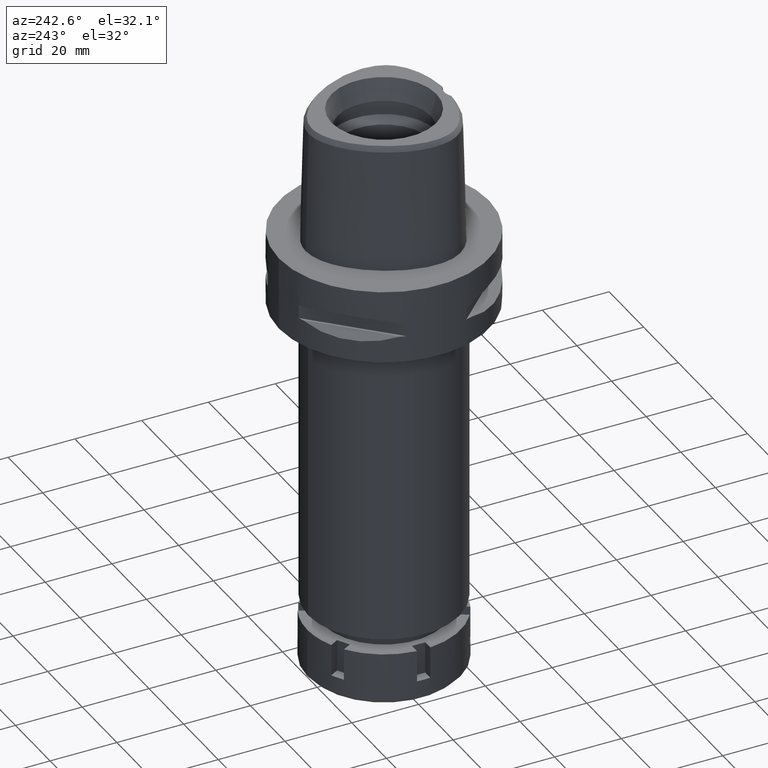
[diagram: clean part render]
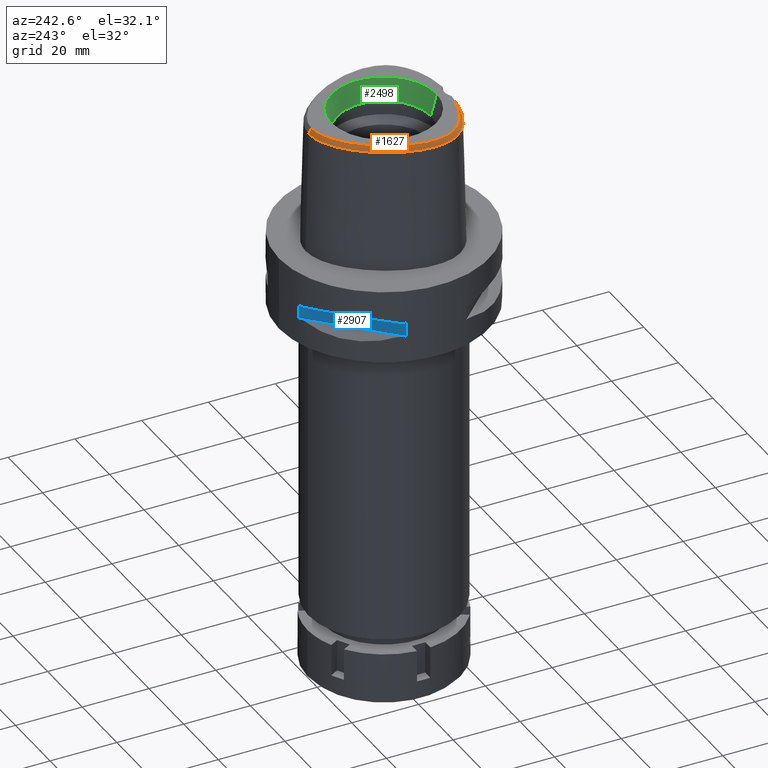
[diagram: same view with three faces highlighted in distinct colors, each labeled with its STEP entity id]
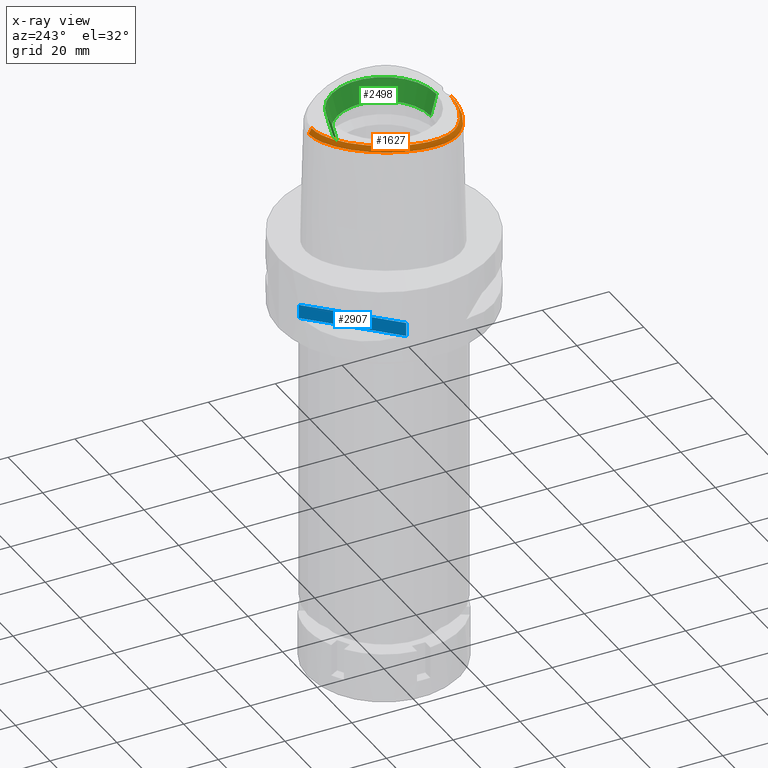
[diagram: x-ray of the same camera — body ghosted, the three highlighted faces saturated]
A machine part, auxiliary view with three faces highlighted in distinct colors.
The next image is the same camera in x-ray (body ghosted, the three faces saturated) — at least one of them is partly hidden behind the body in this view.
Their STEP definitions:

[orange] entity #1627 — the highlighted face is a freeform B-spline surface patch.
#8 = DIRECTION ( 'NONE',  ( -1.018379596390013160E-11, -0.5092834681090075977, 0.8605988316927122295 ) ) ;
#24 = CARTESIAN_POINT ( 'NONE',  ( -17.37402865678000197, -13.66774840220000087, 36.94975164540999657 ) ) ;
#36 = B_SPLINE_CURVE_WITH_KNOTS ( 'NONE', 3,
 ( #1539, #4153, #1560, #5024 ),
 .UNSPECIFIED., .F., .F.,
 ( 4, 4 ),
 ( 0.0000000000000000000, 1.000000000000000000 ),
 .UNSPECIFIED. ) ;
#57 = CARTESIAN_POINT ( 'NONE',  ( -20.98452206522999930, -5.318697863554000094, 36.94975234360999394 ) ) ;
#86 = CARTESIAN_POINT ( 'NONE',  ( -20.65395622624999916, -4.313782244179000358, 37.57207274833999833 ) ) ;
#112 = CARTESIAN_POINT ( 'NONE',  ( -20.72952017243000356, -8.833409917243999487, 36.32743067672999615 ) ) ;
#114 = CARTESIAN_POINT ( 'NONE',  ( -18.24302769442376260, 5.671232572958309071, 37.99999999999723599 ) ) ;
#139 = CARTESIAN_POINT ( 'NONE',  ( -17.91458320433000040, -13.09841364166999966, 36.94975173978999550 ) ) ;
#141 = CARTESIAN_POINT ( 'NONE',  ( -20.27898581531928812, -6.181921586189544904, 37.99999999999836575 ) ) ;
#174 = CARTESIAN_POINT ( 'NONE',  ( -9.211804993070998648, -18.59928574234999843, 36.32743498446999553 ) ) ;
#182 = CARTESIAN_POINT ( 'NONE',  ( -4.213576025512999479, 20.75904289437000116, 38.19439370827000602 ) ) ;
#199 = CARTESIAN_POINT ( 'NONE',  ( -18.31748213707626505, -11.58791794387753349, 38.00000000000095213 ) ) ;
#205 = CARTESIAN_POINT ( 'NONE',  ( -3.557266338293999741, 21.37673726703000199, 37.57207282367000545 ) ) ;
#219 = CARTESIAN_POINT ( 'NONE',  ( -2.290829698418999971, -19.06382892654000116, 37.57207295275000547 ) ) ;
#228 = CARTESIAN_POINT ( 'NONE',  ( -5.011143438427999364, 20.42942328251000106, 38.19439364593000619 ) ) ;
#245 = CARTESIAN_POINT ( 'NONE',  ( -2.340570516654999711, -19.79871283109999780, 36.32743167381000404 ) ) ;
#254 = CARTESIAN_POINT ( 'NONE',  ( -5.312562869988999736, 21.10190903368999926, 36.94975202314000029 ) ) ;
#266 = CARTESIAN_POINT ( 'NONE',  ( -7.572130361996999959, -17.89829309547999969, 38.19439335209999342 ) ) ;
#273 = ORIENTED_EDGE ( 'NONE', *, *, #2016, .F. ) ;
#276 = CARTESIAN_POINT ( 'NONE',  ( -8.949172463557999890, 18.94559266158000099, 36.94975136466000265 ) ) ;
#300 = CARTESIAN_POINT ( 'NONE',  ( -19.85712455859999892, 3.052675212453999976, 36.94975303935000710 ) ) ;
#331 = CARTESIAN_POINT ( 'NONE',  ( -14.17312765907000127, 14.38672719408999967, 36.32743017922000206 ) ) ;
#358 = CARTESIAN_POINT ( 'NONE',  ( -11.38376783060000008, 15.84653561575000147, 38.19439325166000287 ) ) ;
#369 = CARTESIAN_POINT ( 'NONE',  ( -17.27359245833693535, 9.972912913898799303, 36.52186244848001451 ) ) ;
#387 = CARTESIAN_POINT ( 'NONE',  ( -19.15610625101000153, 6.054267532784999517, 36.32743104253000155 ) ) ;
#424 = CARTESIAN_POINT ( 'NONE',  ( -15.76473606185999721, 11.60132340135000106, 36.94975234806000230 ) ) ;
#452 = CARTESIAN_POINT ( 'NONE',  ( -20.94671610875999690, -8.043101238202000403, 36.32743057089999894 ) ) ;
#480 = CARTESIAN_POINT ( 'NONE',  ( -19.18079239677999936, -9.822785492403999896, 38.19439368295000037 ) ) ;
#509 = CARTESIAN_POINT ( 'NONE',  ( -20.16473062245000136, -6.167997837421999918, 38.19439365046000034 ) ) ;
#541 = CARTESIAN_POINT ( 'NONE',  ( -21.37227940065000098, -3.233828534674999755, 36.32743066769000251 ) ) ;
#543 = CARTESIAN_POINT ( 'NONE',  ( -19.28591707036893155, -9.869682450886715586, 37.99999999999295852 ) ) ;
#567 = CARTESIAN_POINT ( 'NONE',  ( -17.36542747952999832, -12.60688624877999864, 38.19439369837999720 ) ) ;
#569 = CARTESIAN_POINT ( 'NONE',  ( -15.00295592774016562, -14.82617991125813717, 38.00000000000108002 ) ) ;
#596 = CARTESIAN_POINT ( 'NONE',  ( -13.45519642223999845, -16.07429141829999963, 37.57207268724999949 ) ) ;
#599 = CARTESIAN_POINT ( 'NONE',  ( -6.759433772717097000, 19.65454812512796678, 37.99999999999762679 ) ) ;
#624 = CARTESIAN_POINT ( 'NONE',  ( -2.315700107537000285, -19.43127087882000126, 36.94975231328000120 ) ) ;
#626 = CARTESIAN_POINT ( 'NONE',  ( -16.36032397153834239, -13.76458520344796987, 38.00000000000374456 ) ) ;
#632 = CARTESIAN_POINT ( 'NONE',  ( -2.131970190963000000, 22.11399066775999955, 36.94975169377999435 ) ) ;
#645 = CARTESIAN_POINT ( 'NONE',  ( -4.690709089790999542, -18.45329468470999856, 38.19439370132000278 ) ) ;
#647 = CARTESIAN_POINT ( 'NONE',  ( -15.71788912669354410, -14.29843101565890606, 37.99999999999920419 ) ) ;
#653 = CARTESIAN_POINT ( 'NONE',  ( -8.509559889584000558, 18.35420135534999986, 38.19439376781000561 ) ) ;
#668 = CARTESIAN_POINT ( 'NONE',  ( -12.47985753072000037, -16.56997625139999997, 37.57207265590999867 ) ) ;
#678 = CARTESIAN_POINT ( 'NONE',  ( -0.6426863416131000095, 21.55889627900999983, 38.19439373371999835 ) ) ;
#700 = CARTESIAN_POINT ( 'NONE',  ( -16.32784604559000030, -15.07863341842999994, 36.32743084837999703 ) ) ;
#708 = CARTESIAN_POINT ( 'NONE',  ( -5.161853154208000838, 20.76566615810000016, 37.57207283452999746 ) ) ;
#715 = CARTESIAN_POINT ( 'NONE',  ( -21.32871527670033274, -4.105831244394256174, 36.52186244848001451 ) ) ;
#731 = CARTESIAN_POINT ( 'NONE',  ( -4.607179140009999507, 21.79204029992000002, 36.32743067533999692 ) ) ;
#759 = CARTESIAN_POINT ( 'NONE',  ( -12.35543351932999911, 14.81451558953000003, 38.19439360119999805 ) ) ;
#770 = CARTESIAN_POINT ( 'NONE',  ( -4.467522189395897847, -19.48130287050651432, 36.52186244848001451 ) ) ;
#794 = CARTESIAN_POINT ( 'NONE',  ( -10.41187760619999914, 16.78146389111000047, 38.19439322828000627 ) ) ;
#804 = CARTESIAN_POINT ( 'NONE',  ( -7.300578999877464170, -19.07170748892091083, 36.52186244848001451 ) ) ;
#820 = CARTESIAN_POINT ( 'NONE',  ( -20.20902587704000197, 3.161765592010999715, 36.32743283009999402 ) ) ;
#849 = CARTESIAN_POINT ( 'NONE',  ( -11.90797765651999995, 16.36437076694000226, 36.94975415324000778 ) ) ;
#887 = CARTESIAN_POINT ( 'NONE',  ( -12.90437077150000000, 15.30604911294000203, 36.94975226480999453 ) ) ;
#914 = CARTESIAN_POINT ( 'NONE',  ( -20.63611868769000068, -3.266955341462999929, 37.57207269533999749 ) ) ;
#936 = CARTESIAN_POINT ( 'NONE',  ( -19.54635035941999988, -10.75783597715000006, 36.94975151845000028 ) ) ;
#966 = CARTESIAN_POINT ( 'NONE',  ( -19.87292738573999884, -10.92857976827999877, 36.32743040800000500 ) ) ;
#992 = CARTESIAN_POINT ( 'NONE',  ( -20.58858615948000192, -7.956332507096999684, 36.94975162073999542 ) ) ;
#1021 = CARTESIAN_POINT ( 'NONE',  ( -14.34263510584000123, -15.56107723215999883, 37.57207283337000092 ) ) ;
#1023 = CARTESIAN_POINT ( 'NONE',  ( -18.99520880203969142, -10.46968343925934519, 38.00000000000005684 ) ) ;
#1046 = CARTESIAN_POINT ( 'NONE',  ( -4.742844040051000576, -18.81800401889999819, 37.57207271261000159 ) ) ;
#1048 = CARTESIAN_POINT ( 'NONE',  ( -2.017025177696559979, 21.50280829367893531, 37.99999999999955946 ) ) ;
#1072 = CARTESIAN_POINT ( 'NONE',  ( -2.687398660049999943, -19.40495994145999958, 36.94975234641000128 ) ) ;
#1074 = CARTESIAN_POINT ( 'NONE',  ( -20.30498420086894740, -2.177378896258164609, 38.00000000000422773 ) ) ;
#1080 = CARTESIAN_POINT ( 'NONE',  ( -0.02530911322917999903, 21.57820892216999908, 38.19439366646000167 ) ) ;
#1093 = VERTEX_POINT ( 'NONE', #3914 ) ;
#1104 = CARTESIAN_POINT ( 'NONE',  ( -9.450989207503001310, 17.61689805632000017, 38.19439352276000221 ) ) ;
#1115 = CARTESIAN_POINT ( 'NONE',  ( -10.50052807809999855, -18.18034680743000209, 36.32743335620000380 ) ) ;
#1124 = CARTESIAN_POINT ( 'NONE',  ( -4.475978101844999557, 21.44770783140999981, 36.94975168631999907 ) ) ;
#1135 = CARTESIAN_POINT ( 'NONE',  ( -1.721531712733000315E-11, 22.56201468012000078, 36.52186680743999858 ) ) ;
#1153 = CARTESIAN_POINT ( 'NONE',  ( -0.6888667861230000078, 22.29447834694000008, 36.94975154878000012 ) ) ;
#1178 = CARTESIAN_POINT ( 'NONE',  ( -20.41062606094000031, -0.9717782803028000016, 37.57207283834999600 ) ) ;
#1188 = ORIENTED_EDGE ( 'NONE', *, *, #1272, .T. ) ;
#1206 = CARTESIAN_POINT ( 'NONE',  ( -19.88972124622000237, 1.583264928851999986, 37.57207382053999822 ) ) ;
#1217 = CARTESIAN_POINT ( 'NONE',  ( -10.15538788052682762, 18.47129535094536834, 36.52186244848001451 ) ) ;
#1242 = CARTESIAN_POINT ( 'NONE',  ( -19.03454434398999950, 4.342937120401999529, 37.57207254325999912 ) ) ;
#1252 = CARTESIAN_POINT ( 'NONE',  ( -20.09619618741428937, -10.23243843868634073, 36.52186244848001451 ) ) ;
#1268 = CARTESIAN_POINT ( 'NONE',  ( -14.25131006088999897, 12.47944445219000009, 38.19439361942000488 ) ) ;
#1272 = EDGE_CURVE ( 'NONE', #4436, #1823, #3289, .T. ) ;
#1297 = CARTESIAN_POINT ( 'NONE',  ( -18.13690550030000281, 5.626714486240000035, 38.19439366558999893 ) ) ;
#1331 = CARTESIAN_POINT ( 'NONE',  ( -16.28428935387000465, -13.67816994066000014, 38.19439372802000321 ) ) ;
#1353 = CARTESIAN_POINT ( 'NONE',  ( -19.67256925539999912, -8.509411298926998768, 38.19439370810999890 ) ) ;
#1376 = CARTESIAN_POINT ( 'NONE',  ( -20.13164263457999681, -9.446162163730001282, 36.94975199882000538 ) ) ;
#1404 = CARTESIAN_POINT ( 'NONE',  ( -21.29047021473999735, -2.080396045540999772, 36.32743025196999298 ) ) ;
#1406 = CARTESIAN_POINT ( 'NONE',  ( -20.40060226222793816, -4.311417605381723028, 38.00000000000602540 ) ) ;
#1409 = VECTOR ( 'NONE', #8, 1000.000000000000227 ) ;
#1434 = CARTESIAN_POINT ( 'NONE',  ( -20.26803833119999965, -3.283518744858000105, 38.19439370916000343 ) ) ;
#1437 = CARTESIAN_POINT ( 'NONE',  ( -13.40435640711434218, 13.76268382997122686, 37.99999999999840128 ) ) ;
#1455 = CARTESIAN_POINT ( 'NONE',  ( -10.37805318362999962, -17.83286449826999842, 36.94975336968999358 ) ) ;
#1457 = CARTESIAN_POINT ( 'NONE',  ( -5.058220461389013600, 20.53445508814172271, 38.00000000000147793 ) ) ;
#1480 = CARTESIAN_POINT ( 'NONE',  ( -11.55444757479999929, -17.38301386171000118, 36.94975153995000738 ) ) ;
#1482 = CARTESIAN_POINT ( 'NONE',  ( -2.841965291530629933, -18.76757795571939980, 37.99999999999952394 ) ) ;
#1494 = CARTESIAN_POINT ( 'NONE',  ( -7.075161704167999943, 20.19025093493999989, 36.94975170650999985 ) ) ;
#1511 = CARTESIAN_POINT ( 'NONE',  ( -10.25557828916999981, -17.48538218911000186, 37.57207338318999490 ) ) ;
#1520 = CARTESIAN_POINT ( 'NONE',  ( 0.4144293555313000033, 22.30309750438999927, 36.94975170000999753 ) ) ;
#1532 = CARTESIAN_POINT ( 'NONE',  ( -2.716295757535000188, -19.77211699873000228, 36.32743172656000041 ) ) ;
#1539 = CARTESIAN_POINT ( 'NONE',  ( -2.682279906006999948, -18.78035848609999903, 38.00000000000000000 ) ) ;
#1542 = CARTESIAN_POINT ( 'NONE',  ( -1.355175608029000056, 21.86242088216000212, 37.57207255058999351 ) ) ;
#1554 = CARTESIAN_POINT ( 'NONE',  ( -15.64699712502999951, -14.20775229996000100, 38.19439368815999813 ) ) ;
#1560 = CARTESIAN_POINT ( 'NONE',  ( -3.339321438880127335, -19.25325016375550646, 37.10705438587216065 ) ) ;
#1563 = CARTESIAN_POINT ( 'NONE',  ( -3.668153019970000095, 21.72814616367000085, 36.94975199647999631 ) ) ;
#1587 = CARTESIAN_POINT ( 'NONE',  ( -0.2181979014508526049, 21.68728795389186814, 37.99999999999960920 ) ) ;
#1593 = CARTESIAN_POINT ( 'NONE',  ( -12.17008256947999989, 16.62328834254000043, 36.32743460404000047 ) ) ;
#1619 = CARTESIAN_POINT ( 'NONE',  ( -20.55712105734999895, -2.152565808330999531, 37.57207258897999225 ) ) ;
#1627 = ADVANCED_FACE ( 'NONE', ( #1881 ), #1705, .F. ) ;
#1647 = CARTESIAN_POINT ( 'NONE',  ( -11.15855850121999993, 17.59641042715999859, 36.32743480527999935 ) ) ;
#1681 = CARTESIAN_POINT ( 'NONE',  ( -17.43446542773000019, 8.811552884746999936, 36.94975195221000064 ) ) ;
#1692 = CARTESIAN_POINT ( 'NONE',  ( -7.108589416785774162, 20.52412325828677453, 36.52186244848001451 ) ) ;
#1705 = B_SPLINE_SURFACE_WITH_KNOTS ( 'NONE', 3, 3, ( 
 ( #3178, #4933, #3208, #2382 ),
 ( #1936, #4905, #1520, #4569 ),
 ( #1080, #2783, #3229, #1960 ),
 ( #678, #5346, #1153, #2835 ),
 ( #5004, #1542, #4493, #4114 ),
 ( #2760, #2354, #632, #2330 ),
 ( #4061, #3668, #2858, #2406 ),
 ( #4593, #205, #1563, #2427 ),
 ( #182, #1905, #1124, #731 ),
 ( #228, #708, #254, #3709 ),
 ( #3608, #3632, #3689, #5378 ),
 ( #4134, #4515, #1494, #5320 ),
 ( #1981, #3251, #5400, #4974 ),
 ( #653, #4088, #276, #4955 ),
 ( #1104, #2805, #4540, #4703 ),
 ( #794, #5027, #4617, #1647 ),
 ( #358, #3428, #849, #1593 ),
 ( #759, #4810, #887, #3858 ),
 ( #2457, #5121, #1709, #331 ),
 ( #1268, #2523, #2135, #4157 ),
 ( #2968, #4226, #424, #3367 ),
 ( #3000, #5053, #3336, #4648 ),
 ( #2494, #2550, #1681, #5147 ),
 ( #3307, #3766, #4285, #2879 ),
 ( #1297, #3825, #2069, #387 ),
 ( #4734, #1242, #2942, #3794 ),
 ( #5091, #4677, #300, #820 ),
 ( #3400, #1206, #2009, #4252 ),
 ( #3740, #5511, #2099, #4197 ),
 ( #5458, #1178, #2041, #5483 ),
 ( #2909, #1619, #5544, #1404 ),
 ( #1434, #914, #3488, #541 ),
 ( #2243, #86, #4818, #1815 ),
 ( #1846, #3119, #57, #2610 ),
 ( #509, #2693, #3946, #3970 ),
 ( #5206, #4403, #2269, #2184 ),
 ( #3911, #3514, #992, #452 ),
 ( #1353, #1768, #1793, #112 ),
 ( #3086, #3061, #1376, #2582 ),
 ( #480, #3539, #4794, #4430 ),
 ( #2217, #3574, #936, #966 ),
 ( #5180, #1735, #5230, #3995 ),
 ( #2633, #4371, #3883, #4317 ),
 ( #2666, #3146, #4342, #5255 ),
 ( #567, #4849, #139, #5289 ),
 ( #4874, #2159, #24, #3456 ),
 ( #1331, #3037, #4768, #2345 ),
 ( #1554, #1896, #2797, #700 ),
 ( #3271, #2323, #1925, #4966 ),
 ( #5337, #1021, #2302, #4531 ),
 ( #2718, #596, #2397, #4032 ),
 ( #3655, #668, #5311, #5369 ),
 ( #3243, #4457, #1480, #3198 ),
 ( #4895, #1511, #1455, #1115 ),
 ( #3221, #4126, #3169, #174 ),
 ( #266, #3679, #1873, #4560 ),
 ( #2774, #4106, #4506, #3600 ),
 ( #645, #1046, #2749, #2370 ),
 ( #1972, #4485, #5415, #3623 ),
 ( #4923, #4078, #1072, #1532 ),
 ( #2824, #219, #624, #245 ),
 ( #4053, #4945, #1951, #5391 ) ),
 .UNSPECIFIED., .F., .F., .F.,
 ( 4, 1, 1, 1, 1, 1, 1, 1, 1, 1, 1, 1, 1, 1, 1, 1, 1, 1, 1, 1, 1, 1, 1, 1, 1, 1, 1, 1, 1, 1, 1, 1, 1, 1, 1, 1, 1, 1, 1, 1, 1, 1, 1, 1, 1, 1, 1, 1, 1, 1, 1, 1, 1, 1, 1, 1, 1, 1, 1, 4 ),
 ( 4, 4 ),
 ( -0.01585043674195000044, 0.0000000000000000000, 0.01776034072165999858, 0.03552068144391999638, 0.05328102216616999870, 0.07104136288842999303, 0.08880170361069000817, 0.1065620443330000111, 0.1243223850551999909, 0.1420827257775000019, 0.1598430664997000095, 0.1776034072219000171, 0.1953637479442000002, 0.2131240886664000078, 0.2308844293887999943, 0.2486447701109999742, 0.2664051108332999851, 0.2841654515554999927, 0.3019257922778000314, 0.3196861329999999835, 0.3374464737223000221, 0.3552068144444999742, 0.3729671551668000129, 0.3907274958890999961, 0.4084878366113000037, 0.4262481773335999868, 0.4440085180557999944, 0.4617688587780999776, 0.4795291995003000407, 0.4972895402225999684, 0.5150498809447999760, 0.5328102216671000146, 0.5505705623893999423, 0.5683309031115999499, 0.5860912438338999886, 0.6038515845561001072, 0.6216119252783999238, 0.6393722660005999314, 0.6571326067228999701, 0.6748929474452000088, 0.6926532881674000164, 0.7104136288896999440, 0.7281739696118999516, 0.7459343103341999903, 0.7636946510563999979, 0.7814549917787000366, 0.7992153325008999332, 0.8169756732231999719, 0.8347360139455000105, 0.8524963546678000492, 0.8702566953900000568, 0.8880170361122000644, 0.9057773768344999921, 0.9235377175566999997, 0.9412980582790000383, 0.9590583990012000459, 0.9768187397236000047, 0.9945790804457999013, 1.000000000000000000, 1.006922200500000031 ),
 ( -0.1072233627436000036, 1.107245931847000042 ),
 .UNSPECIFIED. ) ;
#1709 = CARTESIAN_POINT ( 'NONE',  ( -13.88708719683999959, 14.15453634164999919, 36.94975137478999727 ) ) ;
#1735 = CARTESIAN_POINT ( 'NONE',  ( -18.89277429431000144, -11.16699270129999988, 37.57207275552999448 ) ) ;
#1768 = CARTESIAN_POINT ( 'NONE',  ( -20.02488622773999793, -8.617410838366000192, 37.57207269765000035 ) ) ;
#1793 = CARTESIAN_POINT ( 'NONE',  ( -20.37720320009000119, -8.725410377804999840, 36.94975168718999470 ) ) ;
#1815 = CARTESIAN_POINT ( 'NONE',  ( -21.39084538488999954, -4.320659881561999427, 36.32743087485000189 ) ) ;
#1818 = CARTESIAN_POINT ( 'NONE',  ( -2.735698246183067894, 21.34559102902754901, 38.00000000000426326 ) ) ;
#1823 = VERTEX_POINT ( 'NONE', #3326 ) ;
#1846 = CARTESIAN_POINT ( 'NONE',  ( -20.24912963758000117, -5.271024961993998836, 38.19439358660999773 ) ) ;
#1848 = CARTESIAN_POINT ( 'NONE',  ( -14.21001600787293917, -15.34519100086013665, 37.99999999999636913 ) ) ;
#1873 = CARTESIAN_POINT ( 'NONE',  ( -7.746540490333000406, -18.61420217559999912, 36.94975361064000907 ) ) ;
#1875 = CARTESIAN_POINT ( 'NONE',  ( -8.578220530113378928, 18.44656747109311468, 38.00000000000137135 ) ) ;
#1881 = FACE_OUTER_BOUND ( 'NONE', #5518, .T. ) ;
#1896 = CARTESIAN_POINT ( 'NONE',  ( -15.87394676520999859, -14.49804600612000094, 37.57207274155999954 ) ) ;
#1898 = CARTESIAN_POINT ( 'NONE',  ( -16.88647904405179645, 8.517821442302880186, 38.00000000000510880 ) ) ;
#1905 = CARTESIAN_POINT ( 'NONE',  ( -4.344777063678999518, 21.10337536288999871, 37.57207269729000387 ) ) ;
#1925 = CARTESIAN_POINT ( 'NONE',  ( -15.35747111360999995, -15.33706831046000119, 36.94975232558000044 ) ) ;
#1927 = CARTESIAN_POINT ( 'NONE',  ( -11.31790883121437830, -16.80796958613875702, 37.99999999999964473 ) ) ;
#1936 = CARTESIAN_POINT ( 'NONE',  ( 0.3870621643855000071, 21.56693198410000178, 38.19439370573999781 ) ) ;
#1951 = CARTESIAN_POINT ( 'NONE',  ( -2.106773196320999908, -19.44412792049999794, 36.94975227901999659 ) ) ;
#1960 = CARTESIAN_POINT ( 'NONE',  ( -0.02771281005017000101, 22.68368538782999977, 36.32743103509999827 ) ) ;
#1972 = CARTESIAN_POINT ( 'NONE',  ( -3.510798466744000201, -18.59369493152000175, 38.19439359942000323 ) ) ;
#1981 = CARTESIAN_POINT ( 'NONE',  ( -7.591529263400000005, 18.99866231365000147, 38.19439370012000268 ) ) ;
#1987 = CARTESIAN_POINT ( 'NONE',  ( -21.14970188363735915, -6.717195958887573148, 36.52186244848001451 ) ) ;
#2000 = CARTESIAN_POINT ( 'NONE',  ( -0.6498990081534357088, 21.67378274708484298, 37.99999999999364775 ) ) ;
#2009 = CARTESIAN_POINT ( 'NONE',  ( -20.24657056124999954, 1.674900601045000048, 36.94975444307999624 ) ) ;
#2016 = EDGE_CURVE ( 'NONE', #1093, #2106, #3559, .T. ) ;
#2022 = CARTESIAN_POINT ( 'NONE',  ( -4.757642277158504740, 21.67478330407244869, 36.52186244848001451 ) ) ;
#2041 = CARTESIAN_POINT ( 'NONE',  ( -20.77491494391999893, -0.9166325890628000961, 36.94975203251000551 ) ) ;
#2069 = CARTESIAN_POINT ( 'NONE',  ( -18.81637266743999959, 5.911749850602999956, 36.94975191687999683 ) ) ;
#2099 = CARTESIAN_POINT ( 'NONE',  ( -20.55111691934000007, 0.3485536549239000581, 36.94975395772000581 ) ) ;
#2106 = VERTEX_POINT ( 'NONE', #1135 ) ;
#2135 = CARTESIAN_POINT ( 'NONE',  ( -14.84492760070999928, 12.91594924147999990, 36.94975216634999526 ) ) ;
#2159 = CARTESIAN_POINT ( 'NONE',  ( -17.11470218998999826, -13.40595189233000006, 37.57207268063000072 ) ) ;
#2184 = CARTESIAN_POINT ( 'NONE',  ( -21.12543307391000269, -7.200518689386000482, 36.32743051442000137 ) ) ;
#2217 = CARTESIAN_POINT ( 'NONE',  ( -18.89319630678000195, -10.41634839490999909, 38.19439373934000059 ) ) ;
#2243 = CARTESIAN_POINT ( 'NONE',  ( -20.28551164693000075, -4.310343425487999980, 38.19439368508999877 ) ) ;
#2261 = EDGE_CURVE ( 'NONE', #2106, #1823, #4751, .T. ) ;
#2269 = CARTESIAN_POINT ( 'NONE',  ( -20.76283416374000268, -7.134925224068000560, 36.94975158527000048 ) ) ;
#2271 = CARTESIAN_POINT ( 'NONE',  ( -17.91005512243356534, -12.13778127739561086, 38.00000000000031264 ) ) ;
#2302 = CARTESIAN_POINT ( 'NONE',  ( -14.53549882496999857, -15.87503368428000172, 36.94975202028999917 ) ) ;
#2304 = CARTESIAN_POINT ( 'NONE',  ( -4.254559144977319463, 20.86660163696885206, 37.99999999999889866 ) ) ;
#2323 = CARTESIAN_POINT ( 'NONE',  ( -15.14740436462999895, -15.03434315398999921, 37.57207295775999967 ) ) ;
#2325 = CARTESIAN_POINT ( 'NONE',  ( -20.16012968311339293, -1.009698174524692016, 38.00000000000511591 ) ) ;
#2330 = CARTESIAN_POINT ( 'NONE',  ( -2.200080461581999991, 22.47614467265000116, 36.32743068723000590 ) ) ;
#2345 = CARTESIAN_POINT ( 'NONE',  ( -17.01452811352000083, -14.50810472887999936, 36.32743050545000330 ) ) ;
#2347 = CARTESIAN_POINT ( 'NONE',  ( -7.599370508970297422, -18.01010694911363075, 38.00000000000717648 ) ) ;
#2354 = CARTESIAN_POINT ( 'NONE',  ( -2.063859920342999921, 21.75183666287000150, 37.57207270032999702 ) ) ;
#2370 = CARTESIAN_POINT ( 'NONE',  ( -4.847113940572000068, -19.54742268727999743, 36.32743073518000188 ) ) ;
#2382 = CARTESIAN_POINT ( 'NONE',  ( 0.6494823709810000345, 22.65961221171999895, 36.32743020700999637 ) ) ;
#2397 = CARTESIAN_POINT ( 'NONE',  ( -13.63060820408999874, -16.39831316919999793, 36.94975166165999525 ) ) ;
#2406 = CARTESIAN_POINT ( 'NONE',  ( -2.977119198029000380, 22.30609661637999963, 36.32743130193999548 ) ) ;
#2411 = CARTESIAN_POINT ( 'NONE',  ( -0.7901461696974553250, 22.56201478746714528, 36.52186244848001451 ) ) ;
#2427 = CARTESIAN_POINT ( 'NONE',  ( -3.779039701646000005, 22.07955506030999970, 36.32743116929000138 ) ) ;
#2457 = CARTESIAN_POINT ( 'NONE',  ( -13.31500627240000156, 13.69015463677999911, 38.19439376593000190 ) ) ;
#2494 = CARTESIAN_POINT ( 'NONE',  ( -16.78505054964999843, 8.463453781256999875, 38.19439365906000461 ) ) ;
#2505 = CARTESIAN_POINT ( 'NONE',  ( -10.91891098965069773, -18.03046406390780376, 36.52186244848001451 ) ) ;
#2523 = CARTESIAN_POINT ( 'NONE',  ( -14.54811883080000001, 12.69769684683000044, 37.57207289288000140 ) ) ;
#2533 = CARTESIAN_POINT ( 'NONE',  ( -1.721531712733000315E-11, 22.56201468012000078, 36.52186680743999858 ) ) ;
#2550 = CARTESIAN_POINT ( 'NONE',  ( -17.10975798869000286, 8.637503333001999906, 37.57207280564000484 ) ) ;
#2582 = CARTESIAN_POINT ( 'NONE',  ( -20.47676746447000085, -9.575332791556000700, 36.32743117301000524 ) ) ;
#2610 = CARTESIAN_POINT ( 'NONE',  ( -21.35221827906000058, -5.342534314334000278, 36.32743172210000182 ) ) ;
#2633 = CARTESIAN_POINT ( 'NONE',  ( -18.22296255835999901, -11.52221628200000225, 38.19439373925000325 ) ) ;
#2666 = CARTESIAN_POINT ( 'NONE',  ( -17.81976676773999912, -12.06637853664999938, 38.19439363276000421 ) ) ;
#2669 = CARTESIAN_POINT ( 'NONE',  ( -8.930096025509959290, -17.65000298921696142, 38.00000000000582645 ) ) ;
#2693 = CARTESIAN_POINT ( 'NONE',  ( -20.53050072770999890, -6.212572538355999541, 37.57207282455000552 ) ) ;
#2718 = CARTESIAN_POINT ( 'NONE',  ( -13.27978464038000084, -15.75026966740000134, 38.19439371284000373 ) ) ;
#2720 = CARTESIAN_POINT ( 'NONE',  ( -19.78262210840021140, -8.543146992552534513, 38.00000000000100897 ) ) ;
#2749 = CARTESIAN_POINT ( 'NONE',  ( -4.794978990311999922, -19.18271335308999781, 36.94975172390000040 ) ) ;
#2752 = CARTESIAN_POINT ( 'NONE',  ( -4.706994425064586984, -18.56721852572374587, 38.00000000000502354 ) ) ;
#2760 = CARTESIAN_POINT ( 'NONE',  ( -1.995749649723999708, 21.38968265797999635, 38.19439370689000413 ) ) ;
#2774 = CARTESIAN_POINT ( 'NONE',  ( -6.166620435788000343, -18.20529853017999855, 38.19439372615000394 ) ) ;
#2776 = CARTESIAN_POINT ( 'NONE',  ( -5.893543501600754020, 20.13235399351433230, 38.00000000000574829 ) ) ;
#2783 = CARTESIAN_POINT ( 'NONE',  ( -0.02611034550284000236, 21.94670107738999931, 37.57207278933999817 ) ) ;
#2797 = CARTESIAN_POINT ( 'NONE',  ( -16.10089640539999678, -14.78833971227000177, 36.94975179496999829 ) ) ;
#2805 = CARTESIAN_POINT ( 'NONE',  ( -9.685801567388001132, 17.90081518042000397, 37.57207310567000036 ) ) ;
#2824 = CARTESIAN_POINT ( 'NONE',  ( -2.265959289301000101, -18.69638697425000018, 38.19439359222999997 ) ) ;
#2835 = CARTESIAN_POINT ( 'NONE',  ( -0.7119570083778999914, 22.66226938089999621, 36.32743045630999745 ) ) ;
#2858 = CARTESIAN_POINT ( 'NONE',  ( -2.887292529196999968, 21.94871662659000222, 36.94975207977000764 ) ) ;
#2879 = CARTESIAN_POINT ( 'NONE',  ( -18.49809846503000088, 7.524786774407999701, 36.32743175875000219 ) ) ;
#2888 = CARTESIAN_POINT ( 'NONE',  ( -3.637738201363999835, -19.56971413236999879, 36.52186244848000030 ) ) ;
#2909 = CARTESIAN_POINT ( 'NONE',  ( -20.19044647866000020, -2.188650689727000387, 38.19439375748000032 ) ) ;
#2942 = CARTESIAN_POINT ( 'NONE',  ( -19.38072633727999872, 4.468994801882999468, 36.94975130827000243 ) ) ;
#2953 = CARTESIAN_POINT ( 'NONE',  ( -19.88562090098132984, 4.345879983792142909, 36.52186244848001451 ) ) ;
#2968 = CARTESIAN_POINT ( 'NONE',  ( -15.15108148059999849, 11.19347383672999996, 38.19439358579000299 ) ) ;
#3000 = CARTESIAN_POINT ( 'NONE',  ( -15.99931517684000148, 9.849639883312999444, 38.19439370284000290 ) ) ;
#3037 = CARTESIAN_POINT ( 'NONE',  ( -16.52770227375000189, -13.95481487006999899, 37.57207265383000561 ) ) ;
#3061 = CARTESIAN_POINT ( 'NONE',  ( -19.78651780468999988, -9.316991535904000088, 37.57207282462999842 ) ) ;
#3086 = CARTESIAN_POINT ( 'NONE',  ( -19.44139297479999939, -9.187820908078998983, 38.19439365043000123 ) ) ;
#3088 = CARTESIAN_POINT ( 'NONE',  ( -6.188376196366903059, -18.31830638231269859, 37.99999999999545963 ) ) ;
#3119 = CARTESIAN_POINT ( 'NONE',  ( -20.61682585140999890, -5.294861412773999909, 37.57207296511000294 ) ) ;
#3121 = CARTESIAN_POINT ( 'NONE',  ( -17.60426951086640557, 7.098774535281798137, 37.99999999999760547 ) ) ;
#3146 = CARTESIAN_POINT ( 'NONE',  ( -18.10881079428000007, -12.29496322801000119, 37.57207286352000608 ) ) ;
#3148 = CARTESIAN_POINT ( 'NONE',  ( -19.98419490691583178, -7.809898894995391139, 38.00000000000022737 ) ) ;
#3169 = CARTESIAN_POINT ( 'NONE',  ( -9.106988166102999216, -18.24608148711999789, 36.94975439212999646 ) ) ;
#3171 = CARTESIAN_POINT ( 'NONE',  ( -12.44116897271607769, 14.89128547409758774, 38.00000000000267875 ) ) ;
#3178 = CARTESIAN_POINT ( 'NONE',  ( 0.5882041199235999995, 21.55653676442000233, 38.19439376270000253 ) ) ;
#3198 = CARTESIAN_POINT ( 'NONE',  ( -11.69460779037000009, -17.72375436114000280, 36.32743044224999807 ) ) ;
#3200 = CARTESIAN_POINT ( 'NONE',  ( -20.38301517462537404, -3.278344853328193587, 38.00000000000115818 ) ) ;
#3208 = CARTESIAN_POINT ( 'NONE',  ( 0.6290562872951999118, 22.29192039595000097, 36.94975139224000316 ) ) ;
#3221 = CARTESIAN_POINT ( 'NONE',  ( -8.897354512168998752, -17.53967297667000125, 38.19439320744999833 ) ) ;
#3229 = CARTESIAN_POINT ( 'NONE',  ( -0.02691157777650000221, 22.31519323260999954, 36.94975191222000177 ) ) ;
#3243 = CARTESIAN_POINT ( 'NONE',  ( -11.27412714367000035, -16.70153286285000149, 38.19439373536000204 ) ) ;
#3251 = CARTESIAN_POINT ( 'NONE',  ( -7.795434367189000291, 19.30554718328000163, 37.57207271522000269 ) ) ;
#3271 = CARTESIAN_POINT ( 'NONE',  ( -14.93733761564999973, -14.73161799752999812, 38.19439358994999623 ) ) ;
#3289 = B_SPLINE_CURVE_WITH_KNOTS ( 'NONE', 3,
 ( #5257, #1482, #4926, #2752, #3088, #2347, #2669, #4432, #1927, #3541, #4055, #1848, #569, #647, #626, #4876, #3603, #2271, #199, #4487, #1023, #543, #3972, #2720, #3148, #4080, #141, #5313, #1406, #3200, #1074, #2325, #4820, #5232, #4405, #3998, #114, #3121, #1898, #3576, #5291, #4851, #1437, #3171, #3625, #4897, #4459, #1875, #5339, #599, #2776, #1457, #2304, #4034, #1818, #1048, #4508, #2000, #1587, #4219 ),
 .UNSPECIFIED., .F., .F.,
 ( 4, 1, 1, 1, 1, 1, 1, 1, 1, 1, 1, 1, 1, 1, 1, 1, 1, 1, 1, 1, 1, 1, 1, 1, 1, 1, 1, 1, 1, 1, 1, 1, 1, 1, 1, 1, 1, 1, 1, 1, 1, 1, 1, 1, 1, 1, 1, 1, 1, 1, 1, 1, 1, 1, 1, 1, 1, 4 ),
 ( 0.0000000000000000000, 0.005420919554200098744, 0.02318126027639999531, 0.04094160099879995407, 0.05870194172099996166, 0.07646228244330000035, 0.09422262316550000794, 0.1119829638877999356, 0.1297433046099999432, 0.1475036453321999508, 0.1652639860544999895, 0.1830243267768000281, 0.2007846674991000668, 0.2185450082212999634, 0.2363053489436000021, 0.2540656896658000097, 0.2718260303881000484, 0.2895863711103000560, 0.3073467118325999836, 0.3251070525547999912, 0.3428673932771000299, 0.3606277339994000686, 0.3783880747216000762, 0.3961484154438998928, 0.4139087561661000114, 0.4316690968884000501, 0.4494294376106000577, 0.4671897783328999854, 0.4849501190552000240, 0.5027104597774000316, 0.5204708004996999593, 0.5382311412219000779, 0.5559914819442000056, 0.5737518226664000132, 0.5915121633886999408, 0.6092725041108999484, 0.6270328448331999871, 0.6447931855555000258, 0.6625535262777000334, 0.6803138669999999610, 0.6980742077221999686, 0.7158345484445000073, 0.7335948891667000149, 0.7513552298890000536, 0.7691155706112000612, 0.7868759113336000199, 0.8046362520558000275, 0.8223965927780999552, 0.8401569335002999628, 0.8579172742224999704, 0.8756776149448000091, 0.8934379556670000166, 0.9111982963893099363, 0.9289586371115700070, 0.9467189778338299666, 0.9644793185560800453, 0.9822396592783400049, 1.000000000000000000 ),
 .UNSPECIFIED. ) ;
#3307 = CARTESIAN_POINT ( 'NONE',  ( -17.50038459417000070, 7.049261431274000067, 38.19439358235000270 ) ) ;
#3326 = CARTESIAN_POINT ( 'NONE',  ( -3.470663397108000580E-11, 21.68728795390000030, 38.00000000000000000 ) ) ;
#3336 = CARTESIAN_POINT ( 'NONE',  ( -16.63154455148999844, 10.22805551113000178, 36.94975171566999705 ) ) ;
#3347 = CARTESIAN_POINT ( 'NONE',  ( -13.70645028111648855, 15.04851272300692777, 36.52186244848001451 ) ) ;
#3367 = CARTESIAN_POINT ( 'NONE',  ( -16.07156335249000279, 11.80524818365999984, 36.32743172919000330 ) ) ;
#3381 = CARTESIAN_POINT ( 'NONE',  ( -17.90324032096761186, -13.53935111955743942, 36.52186244848001451 ) ) ;
#3400 = CARTESIAN_POINT ( 'NONE',  ( -19.53287193118000076, 1.491629256658999925, 38.19439319801000465 ) ) ;
#3428 = CARTESIAN_POINT ( 'NONE',  ( -11.64587274356000002, 16.10545319134000053, 37.57207370244999822 ) ) ;
#3456 = CARTESIAN_POINT ( 'NONE',  ( -17.63335512357999946, -13.92954491205999901, 36.32743061020000397 ) ) ;
#3488 = CARTESIAN_POINT ( 'NONE',  ( -21.00419904417000083, -3.250391938068999842, 36.94975168150999423 ) ) ;
#3514 = CARTESIAN_POINT ( 'NONE',  ( -20.23045621019000251, -7.869563775990999765, 37.57207267057000166 ) ) ;
#3539 = CARTESIAN_POINT ( 'NONE',  ( -19.51733257459000015, -9.972918759959000568, 37.57207275300999783 ) ) ;
#3541 = CARTESIAN_POINT ( 'NONE',  ( -12.37132652997164683, -16.34104299088208379, 37.99999999999991473 ) ) ;
#3559 = B_SPLINE_CURVE_WITH_KNOTS ( 'NONE', 3,
 ( #2888, #770, #804, #2505, #4235, #5521, #3381, #5433, #5555, #1252, #4236, #1987, #715, #5493, #2953, #369, #3347, #1217, #1692, #2022, #4139, #2411, #2533 ),
 .UNSPECIFIED., .F., .F.,
 ( 4, 1, 1, 1, 1, 1, 1, 1, 1, 1, 1, 1, 1, 1, 1, 1, 1, 1, 1, 1, 4 ),
 ( 0.0000000000000000000, 0.03580973941722431081, 0.1234633994701847537, 0.1672902294965072090, 0.2111170595230400793, 0.2549438895495728663, 0.2768573045626815388, 0.2987707195758954049, 0.3206841345892144091, 0.3425975496024281641, 0.3864243796288558408, 0.4302512096552835175, 0.4740780396817111941, 0.5617316997346716301, 0.6493853597876321215, 0.7370390198404874749, 0.8246926798933427172, 0.8685195099198755875, 0.9123463399463137558, 0.9561731699727624711, 1.000000000000000000 ),
 .UNSPECIFIED. ) ;
#3574 = CARTESIAN_POINT ( 'NONE',  ( -19.21977333309999736, -10.58709218603000046, 37.57207262890000266 ) ) ;
#3576 = CARTESIAN_POINT ( 'NONE',  ( -16.09805956313449116, 9.908742513515779393, 38.00000000000348166 ) ) ;
#3600 = CARTESIAN_POINT ( 'NONE',  ( -6.375563416070000322, -19.29062934794000128, 36.32743052146000196 ) ) ;
#3603 = CARTESIAN_POINT ( 'NONE',  ( -17.45119705494112949, -12.68365517585579916, 38.00000000000473932 ) ) ;
#3608 = CARTESIAN_POINT ( 'NONE',  ( -5.840647432818999896, 20.03013186044000093, 38.19439362931999682 ) ) ;
#3623 = CARTESIAN_POINT ( 'NONE',  ( -3.626991604792000334, -19.69259007884000212, 36.32743161191999803 ) ) ;
#3625 = CARTESIAN_POINT ( 'NONE',  ( -11.46564124494321746, 15.92741340513481241, 38.00000000000002842 ) ) ;
#3632 = CARTESIAN_POINT ( 'NONE',  ( -6.009985912411999642, 20.35738000938999903, 37.57207287111000227 ) ) ;
#3655 = CARTESIAN_POINT ( 'NONE',  ( -12.32202436213999874, -16.23704592133999824, 38.19439372707000047 ) ) ;
#3668 = CARTESIAN_POINT ( 'NONE',  ( -2.797465860366000090, 21.59133663680000126, 37.57207285761000293 ) ) ;
#3679 = CARTESIAN_POINT ( 'NONE',  ( -7.659335426164999738, -18.25624763553999941, 37.57207348137000480 ) ) ;
#3689 = CARTESIAN_POINT ( 'NONE',  ( -6.179324392005000277, 20.68462815833999713, 36.94975211288999617 ) ) ;
#3709 = CARTESIAN_POINT ( 'NONE',  ( -5.463272585769000322, 21.43815190928000192, 36.32743121175000311 ) ) ;
#3740 = CARTESIAN_POINT ( 'NONE',  ( -19.82912585394000260, 0.2012475814501999971, 38.19439328784999788 ) ) ;
#3750 = EDGE_CURVE ( 'NONE', #4436, #1093, #36, .T. ) ;
#3766 = CARTESIAN_POINT ( 'NONE',  ( -17.83295588445999869, 7.207769878985000211, 37.57207297448000105 ) ) ;
#3794 = CARTESIAN_POINT ( 'NONE',  ( -19.72690833058000237, 4.595052483365000384, 36.32743007329000307 ) ) ;
#3825 = CARTESIAN_POINT ( 'NONE',  ( -18.47663908387000120, 5.769232168421000395, 37.57207279124000365 ) ) ;
#3858 = CARTESIAN_POINT ( 'NONE',  ( -13.17883939759000000, 15.55181587464999815, 36.32743159660999765 ) ) ;
#3869 = CARTESIAN_POINT ( 'NONE',  ( -1.721531712733000315E-11, 22.56201468012000078, 36.52186680743999858 ) ) ;
#3883 = CARTESIAN_POINT ( 'NONE',  ( -18.82814181346999760, -11.94288344253999945, 36.94975151895000209 ) ) ;
#3911 = CARTESIAN_POINT ( 'NONE',  ( -19.87232626089999954, -7.782795044885999936, 38.19439372041000524 ) ) ;
#3914 = CARTESIAN_POINT ( 'NONE',  ( -3.637738201363999835, -19.56971413236999879, 36.52186244848000030 ) ) ;
#3946 = CARTESIAN_POINT ( 'NONE',  ( -20.89627083296000265, -6.257147239290000051, 36.94975199862999915 ) ) ;
#3970 = CARTESIAN_POINT ( 'NONE',  ( -21.26204093820999930, -6.301721940223999674, 36.32743117270999988 ) ) ;
#3972 = CARTESIAN_POINT ( 'NONE',  ( -19.54919922642118735, -9.228169790568323094, 38.00000000000272848 ) ) ;
#3995 = CARTESIAN_POINT ( 'NONE',  ( -19.52301875609999726, -11.54911815150000010, 36.32743090294999888 ) ) ;
#3998 = CARTESIAN_POINT ( 'NONE',  ( -18.79649882724607934, 4.256255933891264220, 37.99999999999764810 ) ) ;
#4032 = CARTESIAN_POINT ( 'NONE',  ( -13.80601998594999991, -16.72233492010000333, 36.32743063607000522 ) ) ;
#4034 = CARTESIAN_POINT ( 'NONE',  ( -3.481017203589082509, 21.13509756881357049, 37.99999999999884892 ) ) ;
#4053 = CARTESIAN_POINT ( 'NONE',  ( -2.061544805161000138, -18.70896637797999773, 38.19439359857000227 ) ) ;
#4055 = CARTESIAN_POINT ( 'NONE',  ( -13.33457781970135869, -15.85148397417531640, 38.00000000000487432 ) ) ;
#4061 = CARTESIAN_POINT ( 'NONE',  ( -2.707639191535000212, 21.23395664701000030, 38.19439363544999821 ) ) ;
#4078 = CARTESIAN_POINT ( 'NONE',  ( -2.658501562565000143, -19.03780288418999689, 37.57207296625000481 ) ) ;
#4080 = CARTESIAN_POINT ( 'NONE',  ( -20.15090095364687883, -7.024227649787589733, 38.00000000000675016 ) ) ;
#4088 = CARTESIAN_POINT ( 'NONE',  ( -8.729366176571002001, 18.64989700846999909, 37.57207256622999836 ) ) ;
#4106 = CARTESIAN_POINT ( 'NONE',  ( -6.236268095882000040, -18.56707546942999798, 37.57207265792000328 ) ) ;
#4114 = CARTESIAN_POINT ( 'NONE',  ( -1.446797600582000021, 22.59372107041000177, 36.32743010192999833 ) ) ;
#4124 = CARTESIAN_POINT ( 'NONE',  ( -2.682279906006999948, -18.78035848609999903, 38.00000000000000000 ) ) ;
#4126 = CARTESIAN_POINT ( 'NONE',  ( -9.002171339135998096, -17.89287723188999735, 37.57207379979000450 ) ) ;
#4134 = CARTESIAN_POINT ( 'NONE',  ( -6.700994713496999822, 19.55539323540000041, 38.19439370453000038 ) ) ;
#4139 = CARTESIAN_POINT ( 'NONE',  ( -2.376843896516890098, 22.39422508473543516, 36.52186244848000740 ) ) ;
#4153 = CARTESIAN_POINT ( 'NONE',  ( -3.014271304863052947, -18.99139391533807597, 37.59976690304549152 ) ) ;
#4157 = CARTESIAN_POINT ( 'NONE',  ( -15.14173637062000033, 13.13420163612000025, 36.32743143980999889 ) ) ;
#4197 = CARTESIAN_POINT ( 'NONE',  ( -20.91211245203000146, 0.4222066916607999931, 36.32743429264999691 ) ) ;
#4219 = CARTESIAN_POINT ( 'NONE',  ( -3.470663397108000580E-11, 21.68728795390000030, 38.00000000000000000 ) ) ;
#4226 = CARTESIAN_POINT ( 'NONE',  ( -15.45790877123000051, 11.39739861903999874, 37.57207296693000842 ) ) ;
#4235 = CARTESIAN_POINT ( 'NONE',  ( -14.22011356156199646, -16.41829364186129325, 36.52186244848001451 ) ) ;
#4236 = CARTESIAN_POINT ( 'NONE',  ( -20.67704215115513122, -8.734985316449344950, 36.52186244848001451 ) ) ;
#4252 = CARTESIAN_POINT ( 'NONE',  ( -20.60341987628000027, 1.766536273237999888, 36.32743506560999691 ) ) ;
#4285 = CARTESIAN_POINT ( 'NONE',  ( -18.16552717475000023, 7.366278326695999468, 36.94975236660999940 ) ) ;
#4317 = CARTESIAN_POINT ( 'NONE',  ( -19.13073144102999734, -12.15321702281000071, 36.32743040880000507 ) ) ;
#4342 = CARTESIAN_POINT ( 'NONE',  ( -18.39785482081000012, -12.52354791936999945, 36.94975209427000351 ) ) ;
#4371 = CARTESIAN_POINT ( 'NONE',  ( -18.52555218591000497, -11.73254986226999996, 37.57207262909999912 ) ) ;
#4403 = CARTESIAN_POINT ( 'NONE',  ( -20.40023525355999823, -7.069331758750000638, 37.57207265613000402 ) ) ;
#4405 = CARTESIAN_POINT ( 'NONE',  ( -19.26324493738265886, 2.868570891456770688, 38.00000000000436984 ) ) ;
#4430 = CARTESIAN_POINT ( 'NONE',  ( -20.19041293019999728, -10.27318529507000022, 36.32743089312999274 ) ) ;
#4432 = CARTESIAN_POINT ( 'NONE',  ( -10.17136073855617973, -17.24644253470374977, 38.00000000000028422 ) ) ;
#4436 = VERTEX_POINT ( 'NONE', #4124 ) ;
#4457 = CARTESIAN_POINT ( 'NONE',  ( -11.41428735923000026, -17.04227336227999956, 37.57207263765999983 ) ) ;
#4459 = CARTESIAN_POINT ( 'NONE',  ( -9.524337278001425489, 17.70558492631438696, 38.00000000000132161 ) ) ;
#4485 = CARTESIAN_POINT ( 'NONE',  ( -3.549529512760000394, -18.95999331395999832, 37.57207293692000150 ) ) ;
#4487 = CARTESIAN_POINT ( 'NONE',  ( -18.67608643721805350, -11.03561202290792664, 38.00000000000310507 ) ) ;
#4493 = CARTESIAN_POINT ( 'NONE',  ( -1.400986604305000105, 22.22807097628000150, 36.94975132625999947 ) ) ;
#4506 = CARTESIAN_POINT ( 'NONE',  ( -6.305915755975999737, -18.92885240868000096, 36.94975158969000262 ) ) ;
#4508 = CARTESIAN_POINT ( 'NONE',  ( -1.323674540694138368, 21.61098849315875015, 38.00000000000468958 ) ) ;
#4515 = CARTESIAN_POINT ( 'NONE',  ( -6.888078208831999838, 19.87282208517000015, 37.57207270552000011 ) ) ;
#4531 = CARTESIAN_POINT ( 'NONE',  ( -14.72836254409999945, -16.18899013639000017, 36.32743120721000452 ) ) ;
#4540 = CARTESIAN_POINT ( 'NONE',  ( -9.920613927272999177, 18.18473230451999711, 36.94975268857999851 ) ) ;
#4560 = CARTESIAN_POINT ( 'NONE',  ( -7.833745554501999386, -18.97215671565000150, 36.32743373990999913 ) ) ;
#4569 = CARTESIAN_POINT ( 'NONE',  ( 0.4281129511042999769, 22.67118026453999491, 36.32743069714000228 ) ) ;
#4593 = CARTESIAN_POINT ( 'NONE',  ( -3.446379656617999832, 21.02532837038999958, 38.19439365086000038 ) ) ;
#4617 = CARTESIAN_POINT ( 'NONE',  ( -10.90966486954999937, 17.32476158181000159, 36.94975427960999781 ) ) ;
#4648 = CARTESIAN_POINT ( 'NONE',  ( -16.94765923881000091, 10.41726332504000041, 36.32743072208000257 ) ) ;
#4677 = CARTESIAN_POINT ( 'NONE',  ( -19.50522324016000297, 2.943584832897999881, 37.57207324859000153 ) ) ;
#4703 = CARTESIAN_POINT ( 'NONE',  ( -10.15542628715999918, 18.46864942862000092, 36.32743227149000376 ) ) ;
#4734 = CARTESIAN_POINT ( 'NONE',  ( -18.68836235069000296, 4.216879438919999501, 38.19439377823999848 ) ) ;
#4751 = LINE ( 'NONE', #3869, #1409 ) ;
#4768 = CARTESIAN_POINT ( 'NONE',  ( -16.77111519364000358, -14.23145979946999873, 36.94975157964000800 ) ) ;
#4794 = CARTESIAN_POINT ( 'NONE',  ( -19.85387275240000093, -10.12305202750999911, 36.94975182306999528 ) ) ;
#4810 = CARTESIAN_POINT ( 'NONE',  ( -12.62990214541000000, 15.06028235123000059, 37.57207293300000117 ) ) ;
#4818 = CARTESIAN_POINT ( 'NONE',  ( -21.02240080557000113, -4.317221062871000825, 36.94975181159999522 ) ) ;
#4820 = CARTESIAN_POINT ( 'NONE',  ( -19.94188961899504875, 0.2242544969875511496, 38.00000000000176925 ) ) ;
#4849 = CARTESIAN_POINT ( 'NONE',  ( -17.64000534193000291, -12.85264994521999959, 37.57207271908000479 ) ) ;
#4851 = CARTESIAN_POINT ( 'NONE',  ( -14.34402387966244774, 12.54761970512990565, 37.99999999999908340 ) ) ;
#4874 = CARTESIAN_POINT ( 'NONE',  ( -16.85537572319000077, -13.14415538245999926, 38.19439371584000753 ) ) ;
#4876 = CARTESIAN_POINT ( 'NONE',  ( -16.93638123745764545, -13.22593246127981992, 37.99999999999958078 ) ) ;
#4895 = CARTESIAN_POINT ( 'NONE',  ( -10.13310339470000088, -17.13789987996000264, 38.19439339669000333 ) ) ;
#4897 = CARTESIAN_POINT ( 'NONE',  ( -10.48962422759314883, 16.86631853278774784, 38.00000000000738964 ) ) ;
#4905 = CARTESIAN_POINT ( 'NONE',  ( 0.4007457599584000052, 21.93501474425000097, 37.57207270287000256 ) ) ;
#4923 = CARTESIAN_POINT ( 'NONE',  ( -2.629604465080999987, -18.67064582692000130, 38.19439358609000124 ) ) ;
#4926 = CARTESIAN_POINT ( 'NONE',  ( -3.522896839654269030, -18.70811514173297851, 38.00000000000287770 ) ) ;
#4933 = CARTESIAN_POINT ( 'NONE',  ( 0.6086302036094000112, 21.92422858018000298, 37.57207257747000284 ) ) ;
#4945 = CARTESIAN_POINT ( 'NONE',  ( -2.084159000741000245, -19.07654714924000317, 37.57207293879999810 ) ) ;
#4955 = CARTESIAN_POINT ( 'NONE',  ( -9.168978750546001422, 19.24128831470000023, 36.32743016308000250 ) ) ;
#4966 = CARTESIAN_POINT ( 'NONE',  ( -15.56753786260000005, -15.63979346691999872, 36.32743169338999678 ) ) ;
#4974 = CARTESIAN_POINT ( 'NONE',  ( -8.203244574766999975, 19.91931692253000108, 36.32743074540000805 ) ) ;
#5004 = CARTESIAN_POINT ( 'NONE',  ( -1.309364611753000229, 21.49677078803000185, 38.19439377492000176 ) ) ;
#5024 = CARTESIAN_POINT ( 'NONE',  ( -3.637738201363999835, -19.56971413236999879, 36.52186244848000030 ) ) ;
#5027 = CARTESIAN_POINT ( 'NONE',  ( -10.66077123786999969, 17.05311273646000103, 37.57207375393999627 ) ) ;
#5053 = CARTESIAN_POINT ( 'NONE',  ( -16.31542986415999863, 10.03884769722000136, 37.57207270926000575 ) ) ;
#5091 = CARTESIAN_POINT ( 'NONE',  ( -19.15332192171999992, 2.834494453340999698, 38.19439345783999329 ) ) ;
#5121 = CARTESIAN_POINT ( 'NONE',  ( -13.60104673462000058, 13.92234548921999959, 37.57207257035999959 ) ) ;
#5128 = ORIENTED_EDGE ( 'NONE', *, *, #3750, .F. ) ;
#5147 = CARTESIAN_POINT ( 'NONE',  ( -17.75917286677000106, 8.985602436491999967, 36.32743109879000087 ) ) ;
#5180 = CARTESIAN_POINT ( 'NONE',  ( -18.57765206341000308, -10.97592997619999977, 38.19439368182000294 ) ) ;
#5206 = CARTESIAN_POINT ( 'NONE',  ( -20.03763634339000177, -7.003738293432000717, 38.19439372698000312 ) ) ;
#5230 = CARTESIAN_POINT ( 'NONE',  ( -19.20789652520999979, -11.35805542640000176, 36.94975182924000023 ) ) ;
#5232 = CARTESIAN_POINT ( 'NONE',  ( -19.64434054692754117, 1.520253387635215114, 37.99999999999655387 ) ) ;
#5255 = CARTESIAN_POINT ( 'NONE',  ( -18.68689884734000017, -12.75213261072999948, 36.32743132501999384 ) ) ;
#5257 = CARTESIAN_POINT ( 'NONE',  ( -2.682279906006999948, -18.78035848609999903, 38.00000000000000000 ) ) ;
#5263 = ORIENTED_EDGE ( 'NONE', *, *, #2261, .F. ) ;
#5289 = CARTESIAN_POINT ( 'NONE',  ( -18.18916106672999788, -13.34417733811999973, 36.32743076050000752 ) ) ;
#5291 = CARTESIAN_POINT ( 'NONE',  ( -15.24692477332526686, 11.25717358965857073, 38.00000000000434852 ) ) ;
#5311 = CARTESIAN_POINT ( 'NONE',  ( -12.63769069930000022, -16.90290658146000169, 36.94975158473999954 ) ) ;
#5313 = CARTESIAN_POINT ( 'NONE',  ( -20.36398648679843149, -5.278470727085328384, 37.99999999999998579 ) ) ;
#5320 = CARTESIAN_POINT ( 'NONE',  ( -7.262245199504000048, 20.50767978469999875, 36.32743070749000225 ) ) ;
#5337 = CARTESIAN_POINT ( 'NONE',  ( -14.14977138670000123, -15.24712078005000038, 38.19439364644999557 ) ) ;
#5339 = CARTESIAN_POINT ( 'NONE',  ( -7.655222869371289818, 19.09452359226217766, 37.99999999999484857 ) ) ;
#5346 = CARTESIAN_POINT ( 'NONE',  ( -0.6657765638681000242, 21.92668731296999951, 37.57207264125000279 ) ) ;
#5369 = CARTESIAN_POINT ( 'NONE',  ( -12.79552386788000007, -17.23583691150999897, 36.32743051357999775 ) ) ;
#5378 = CARTESIAN_POINT ( 'NONE',  ( -6.348662871596999935, 21.01187630728999878, 36.32743135467999451 ) ) ;
#5391 = CARTESIAN_POINT ( 'NONE',  ( -2.129387391901000459, -19.81170869175999627, 36.32743161924999953 ) ) ;
#5400 = CARTESIAN_POINT ( 'NONE',  ( -7.999339470978000577, 19.61243205290999825, 36.94975173030999827 ) ) ;
#5415 = CARTESIAN_POINT ( 'NONE',  ( -3.588260558776000142, -19.32629169639999844, 36.94975227441999266 ) ) ;
#5433 = CARTESIAN_POINT ( 'NONE',  ( -18.90964971338520684, -12.28759719904428849, 36.52186244848001451 ) ) ;
#5458 = CARTESIAN_POINT ( 'NONE',  ( -20.04633717796999903, -1.026923971543000080, 38.19439364419999805 ) ) ;
#5483 = CARTESIAN_POINT ( 'NONE',  ( -21.13920382689000022, -0.8614868978228999996, 36.32743122667000080 ) ) ;
#5493 = CARTESIAN_POINT ( 'NONE',  ( -21.07430010672550935, -0.4408303445192685577, 36.52186244848001451 ) ) ;
#5511 = CARTESIAN_POINT ( 'NONE',  ( -20.19012138664000133, 0.2749006181870999876, 37.57207362279000051 ) ) ;
#5518 = EDGE_LOOP ( 'NONE', ( #1188, #5263, #273, #5128 ) ) ;
#5521 = CARTESIAN_POINT ( 'NONE',  ( -16.39211280192208520, -14.95758113319049976, 36.52186244848001451 ) ) ;
#5544 = CARTESIAN_POINT ( 'NONE',  ( -20.92379563603999770, -2.116480926936000095, 36.94975142047999839 ) ) ;
#5555 = CARTESIAN_POINT ( 'NONE',  ( -19.55745547455638089, -11.29150218115980131, 36.52186244848001451 ) ) ;

[blue] entity #2907 — the highlighted planar face has unit normal (0.7071, -0.7071, 0).
#188 = CARTESIAN_POINT ( 'NONE',  ( -30.19251670572000279, 8.981198972019999616, -14.05000000000000071 ) ) ;
#203 = EDGE_LOOP ( 'NONE', ( #1645, #3435, #1025, #3350 ) ) ;
#433 = LINE ( 'NONE', #3953, #2904 ) ;
#460 = DIRECTION ( 'NONE',  ( 0.0000000000000000000, 0.0000000000000000000, -1.000000000000000000 ) ) ;
#554 = EDGE_CURVE ( 'NONE', #5294, #1176, #433, .T. ) ;
#787 = CARTESIAN_POINT ( 'NONE',  ( -8.981198972017999438, 30.19251670572000279, -14.05000000000000071 ) ) ;
#1025 = ORIENTED_EDGE ( 'NONE', *, *, #1844, .T. ) ;
#1176 = VERTEX_POINT ( 'NONE', #5149 ) ;
#1260 = DIRECTION ( 'NONE',  ( -0.7071067811865474617, -0.7071067811865474617, 0.0000000000000000000 ) ) ;
#1645 = ORIENTED_EDGE ( 'NONE', *, *, #2507, .F. ) ;
#1718 = CARTESIAN_POINT ( 'NONE',  ( -30.19251670572000279, 8.981198972017999438, -14.05000000000000071 ) ) ;
#1822 = VERTEX_POINT ( 'NONE', #2935 ) ;
#1844 = EDGE_CURVE ( 'NONE', #1176, #3196, #4246, .T. ) ;
#1859 = LINE ( 'NONE', #4115, #4393 ) ;
#2393 = PLANE ( 'NONE',  #4301 ) ;
#2507 = EDGE_CURVE ( 'NONE', #5294, #1822, #1859, .T. ) ;
#2904 = VECTOR ( 'NONE', #460, 1000.000000000000000 ) ;
#2907 = ADVANCED_FACE ( 'NONE', ( #3675 ), #2393, .F. ) ;
#2935 = CARTESIAN_POINT ( 'NONE',  ( -30.19251670572000279, 8.981198972017999438, -9.950000000000001066 ) ) ;
#3196 = VERTEX_POINT ( 'NONE', #188 ) ;
#3290 = CARTESIAN_POINT ( 'NONE',  ( -8.981198972019999616, 30.19251670572000279, -9.950000000000001066 ) ) ;
#3350 = ORIENTED_EDGE ( 'NONE', *, *, #5562, .T. ) ;
#3435 = ORIENTED_EDGE ( 'NONE', *, *, #554, .T. ) ;
#3437 = DIRECTION ( 'NONE',  ( 0.0000000000000000000, 0.0000000000000000000, 1.000000000000000000 ) ) ;
#3647 = CARTESIAN_POINT ( 'NONE',  ( -33.72899346260000186, 5.444722215136000187, -9.950000000000001066 ) ) ;
#3675 = FACE_OUTER_BOUND ( 'NONE', #203, .T. ) ;
#3953 = CARTESIAN_POINT ( 'NONE',  ( -8.981198972017999438, 30.19251670572000279, -9.950000000000001066 ) ) ;
#4115 = CARTESIAN_POINT ( 'NONE',  ( -8.981198972017999438, 30.19251670572000279, -9.950000000000001066 ) ) ;
#4246 = LINE ( 'NONE', #787, #4637 ) ;
#4301 = AXIS2_PLACEMENT_3D ( 'NONE', #3647, #4941, #5015 ) ;
#4393 = VECTOR ( 'NONE', #4859, 1000.000000000000114 ) ;
#4637 = VECTOR ( 'NONE', #1260, 1000.000000000000114 ) ;
#4859 = DIRECTION ( 'NONE',  ( -0.7071067811865474617, -0.7071067811865474617, 0.0000000000000000000 ) ) ;
#4941 = DIRECTION ( 'NONE',  ( 0.7071067811865475727, -0.7071067811865475727, 0.0000000000000000000 ) ) ;
#5015 = DIRECTION ( 'NONE',  ( 0.0000000000000000000, 0.0000000000000000000, -1.000000000000000000 ) ) ;
#5149 = CARTESIAN_POINT ( 'NONE',  ( -8.981198972017999438, 30.19251670572000279, -14.05000000000000071 ) ) ;
#5294 = VERTEX_POINT ( 'NONE', #3290 ) ;
#5336 = LINE ( 'NONE', #1718, #5451 ) ;
#5451 = VECTOR ( 'NONE', #3437, 1000.000000000000000 ) ;
#5562 = EDGE_CURVE ( 'NONE', #3196, #1822, #5336, .T. ) ;

[green] entity #2498 — the highlighted conical surface has half-angle 15 deg.
#12 = CARTESIAN_POINT ( 'NONE',  ( 0.0000000000000000000, 14.00000000000000000, 31.60000000000000142 ) ) ;
#201 = EDGE_CURVE ( 'NONE', #2664, #5250, #4093, .T. ) ;
#206 = DIRECTION ( 'NONE',  ( 0.0000000000000000000, 1.000000000000000000, 0.0000000000000000000 ) ) ;
#337 = VERTEX_POINT ( 'NONE', #12 ) ;
#342 = EDGE_CURVE ( 'NONE', #337, #5250, #3074, .T. ) ;
#425 = CARTESIAN_POINT ( 'NONE',  ( 0.0000000000000000000, -15.71487483155999776, 38.00000000000000000 ) ) ;
#443 = CARTESIAN_POINT ( 'NONE',  ( 0.0000000000000000000, 0.0000000000000000000, 38.00000000000000000 ) ) ;
#650 = LINE ( 'NONE', #2351, #2817 ) ;
#900 = EDGE_CURVE ( 'NONE', #3127, #337, #2453, .T. ) ;
#1120 = AXIS2_PLACEMENT_3D ( 'NONE', #443, #1577, #3320 ) ;
#1314 = AXIS2_PLACEMENT_3D ( 'NONE', #3768, #4228, #4571 ) ;
#1415 = AXIS2_PLACEMENT_3D ( 'NONE', #2729, #4089, #206 ) ;
#1460 = ORIENTED_EDGE ( 'NONE', *, *, #900, .F. ) ;
#1561 = ORIENTED_EDGE ( 'NONE', *, *, #201, .T. ) ;
#1577 = DIRECTION ( 'NONE',  ( 0.0000000000000000000, 0.0000000000000000000, 1.000000000000000000 ) ) ;
#2351 = CARTESIAN_POINT ( 'NONE',  ( 0.0000000000000000000, -14.00000000000000000, 31.60000000000000142 ) ) ;
#2453 = CIRCLE ( 'NONE', #1314, 14.00000000000000000 ) ;
#2498 = ADVANCED_FACE ( 'NONE', ( #3130 ), #3479, .F. ) ;
#2504 = CARTESIAN_POINT ( 'NONE',  ( 0.0000000000000000000, 15.71487483155999776, 38.00000000000000000 ) ) ;
#2664 = VERTEX_POINT ( 'NONE', #425 ) ;
#2729 = CARTESIAN_POINT ( 'NONE',  ( 0.0000000000000000000, 0.0000000000000000000, 34.79999999999999716 ) ) ;
#2817 = VECTOR ( 'NONE', #4084, 1000.000000000000000 ) ;
#3074 = LINE ( 'NONE', #5196, #3552 ) ;
#3127 = VERTEX_POINT ( 'NONE', #3810 ) ;
#3130 = FACE_OUTER_BOUND ( 'NONE', #3494, .T. ) ;
#3320 = DIRECTION ( 'NONE',  ( 0.0000000000000000000, -1.000000000000000000, 0.0000000000000000000 ) ) ;
#3479 = CONICAL_SURFACE ( 'NONE', #1415, 14.85743741577999977, 0.2617993877991000029 ) ;
#3494 = EDGE_LOOP ( 'NONE', ( #5032, #1460, #4600, #1561 ) ) ;
#3552 = VECTOR ( 'NONE', #5219, 1000.000000000000000 ) ;
#3768 = CARTESIAN_POINT ( 'NONE',  ( 0.0000000000000000000, 0.0000000000000000000, 31.60000000000000142 ) ) ;
#3810 = CARTESIAN_POINT ( 'NONE',  ( 0.0000000000000000000, -14.00000000000000000, 31.60000000000000142 ) ) ;
#3811 = EDGE_CURVE ( 'NONE', #3127, #2664, #650, .T. ) ;
#4084 = DIRECTION ( 'NONE',  ( 0.0000000000000000000, -0.2588190451025869088, 0.9659258262890505486 ) ) ;
#4089 = DIRECTION ( 'NONE',  ( 0.0000000000000000000, 0.0000000000000000000, 1.000000000000000000 ) ) ;
#4093 = CIRCLE ( 'NONE', #1120, 15.71487483155999776 ) ;
#4228 = DIRECTION ( 'NONE',  ( 0.0000000000000000000, 0.0000000000000000000, 1.000000000000000000 ) ) ;
#4571 = DIRECTION ( 'NONE',  ( 0.0000000000000000000, -1.000000000000000000, 0.0000000000000000000 ) ) ;
#4600 = ORIENTED_EDGE ( 'NONE', *, *, #3811, .T. ) ;
#5032 = ORIENTED_EDGE ( 'NONE', *, *, #342, .F. ) ;
#5196 = CARTESIAN_POINT ( 'NONE',  ( 0.0000000000000000000, 14.00000000000000000, 31.60000000000000142 ) ) ;
#5219 = DIRECTION ( 'NONE',  ( 0.0000000000000000000, 0.2588190451025869088, 0.9659258262890505486 ) ) ;
#5250 = VERTEX_POINT ( 'NONE', #2504 ) ;